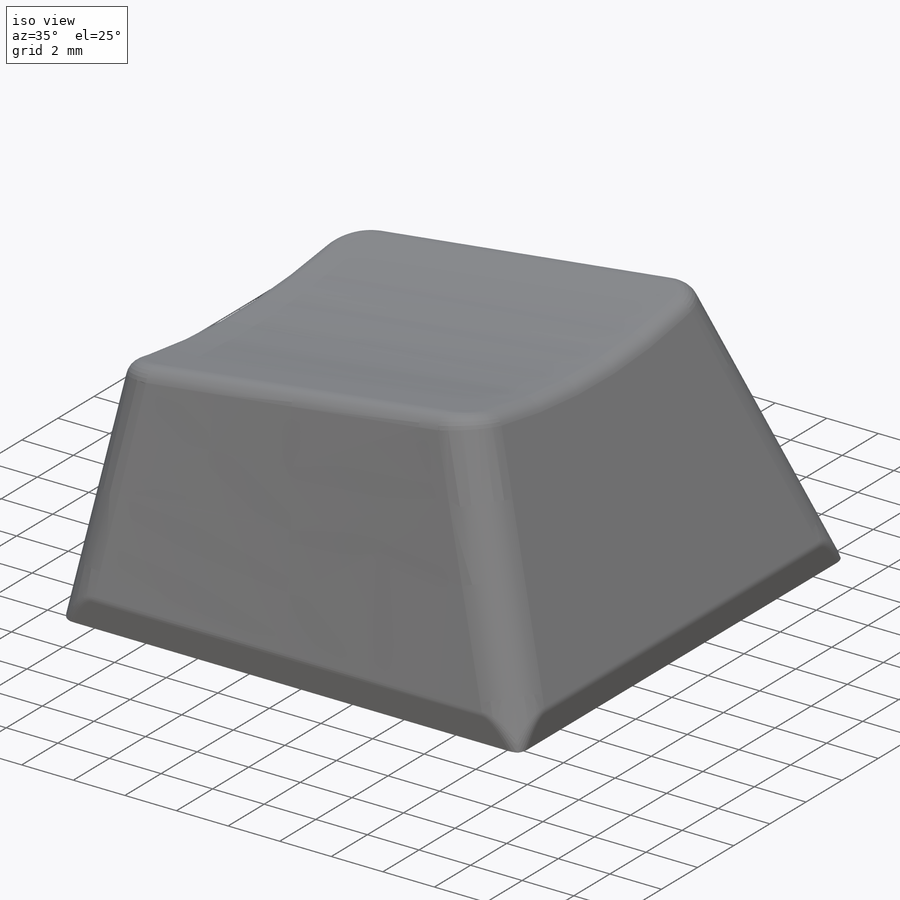
[diagram: iso view]
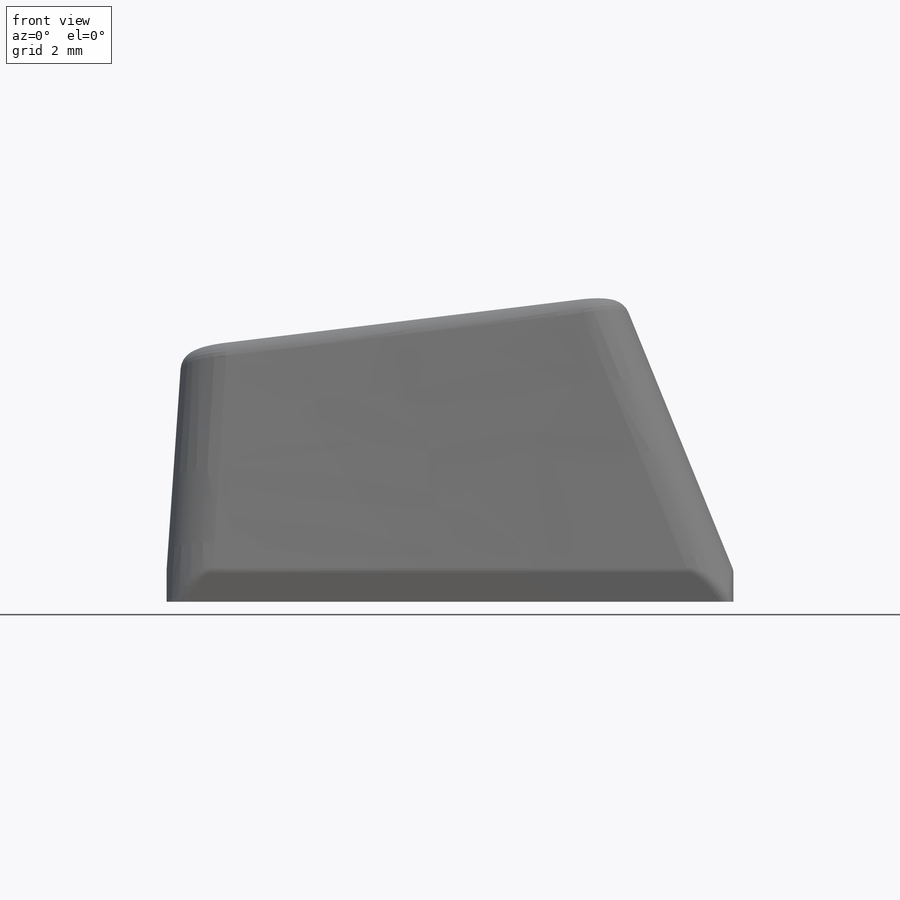
[diagram: front view]
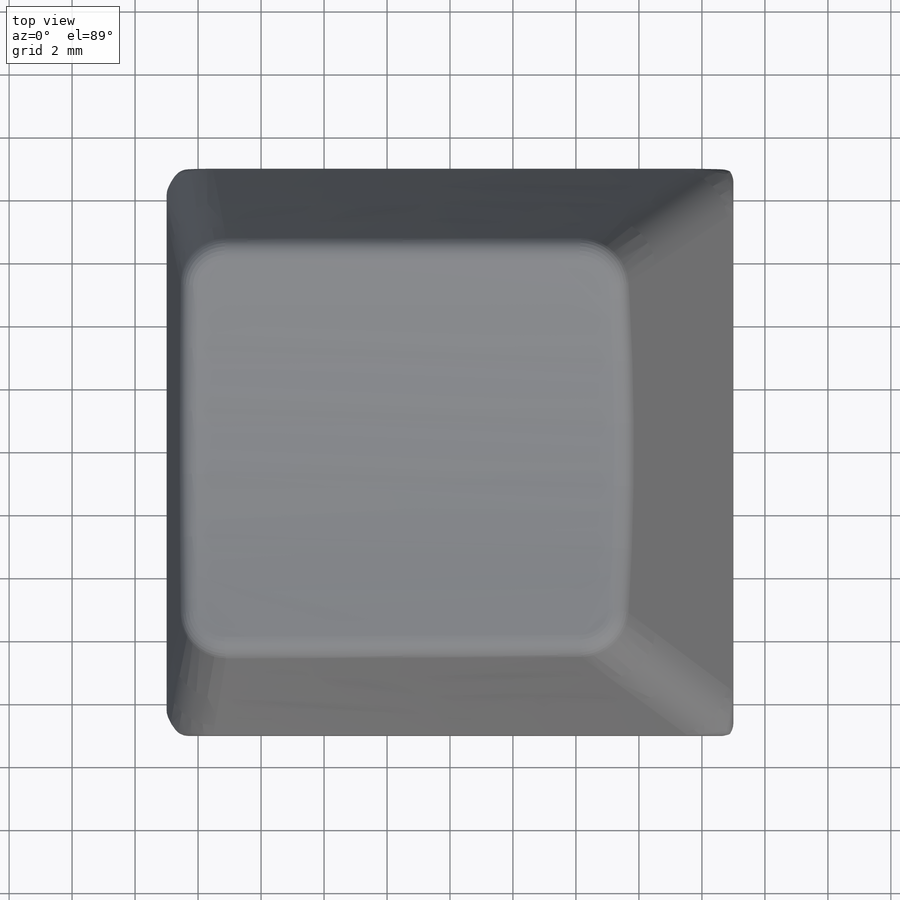
[diagram: top view]
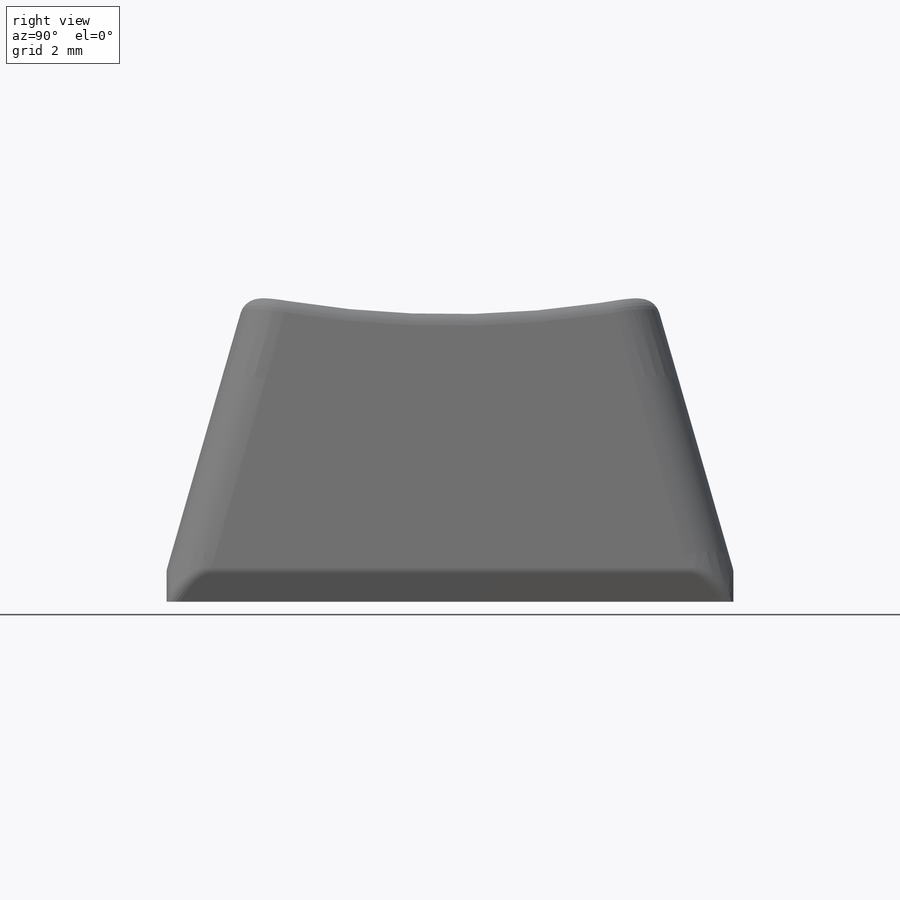
[diagram: right view]
SOLIDWORKS PART (.sldprt)
format: sldprt  version: not decoded by parser v0  size: 628,736 bytes
history: native  units: mm
features: sketch x9, plane x4, fillet x4, extrude x3, cut_extrude x3, material x1, shell x1, chamfer x1 (+13 scaffold rows collapsed)
feature tree (39):
  scaffold x13  (default folders/planes/origin — collapsed)
  material  "ABS"
  sketch  "Sketch1"  dims[D1=18.0mm D2=18.0mm]
  plane  "Plane2"  Offset=9.3mm
  sketch  "Sketch3"
  plane  "Plane3"
  sketch  "Sketch5"  dims[D1=13.0mm D2=14.0mm D3=2.5mm]
  sketch  "Sketch6"  dims[D1=1.0mm]
  extrude  "Boss-Extrude1"  Depth=18mm
  plane  "Plane4"  Offset=0mm
  plane  "Plane5"
  sketch  "Sketch7"
  cut_extrude  "Cut-Extrude1"  [1 undecoded]
  fillet  "Fillet3"  Radius=0.6mm
  shell  "Shell1"  Thickness=1.25mm
  sketch  "Sketch11"  dims[D1=5.6mm]
  extrude  "Boss-Extrude3"  [1 undecoded]
  sketch  "Sketch12"  dims[D1=1.1mm D2=1.1mm D3=1.1mm]
  cut_extrude  "Cut-Extrude3"  [1 undecoded]
  sketch  "Sketch13"  dims[D1=4.5mm D2=5.8mm]
  extrude  "Boss-Extrude4"  [1 undecoded]
  sketch  "Sketch14"  dims[D1=6.25mm]
  cut_extrude  "Cut-Extrude4"  Depth=0.5mm
  fillet  "Fillet4"  Radius=1.5mm
  fillet  "Fillet5"  Radius=0.5mm
  chamfer  "Chamfer1"  Distance=0.2mm Angle=45deg
  fillet  "Fillet6"  Radius=2mm
decode coverage: 15 of 21 modeling features carry decoded parameters
note: 4 parameter values undecoded
summary: no parameter record found for 4 features
note: suppression state not decoded; provenance and decode notes live in map.json
